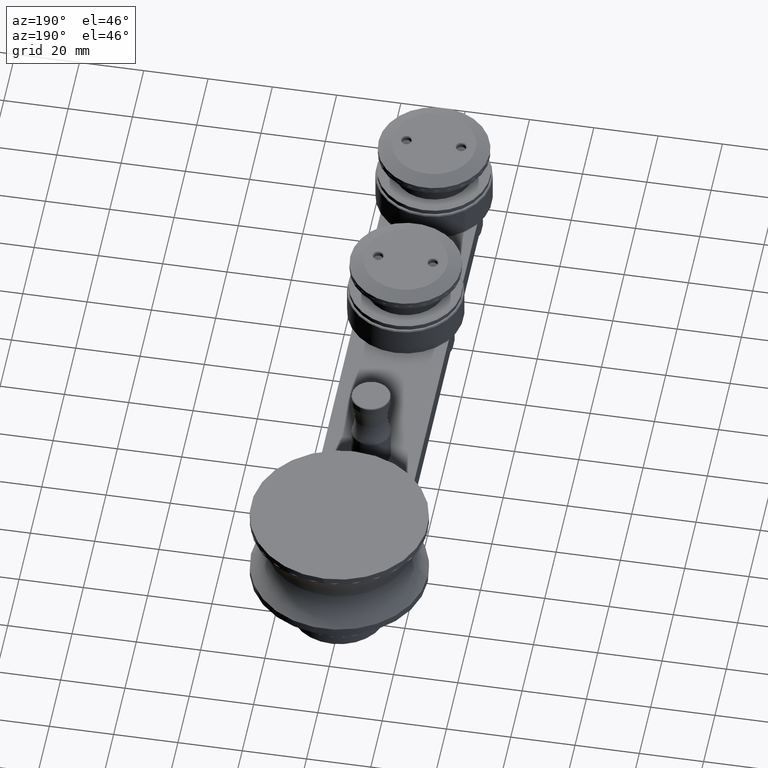
[diagram: clean part render]
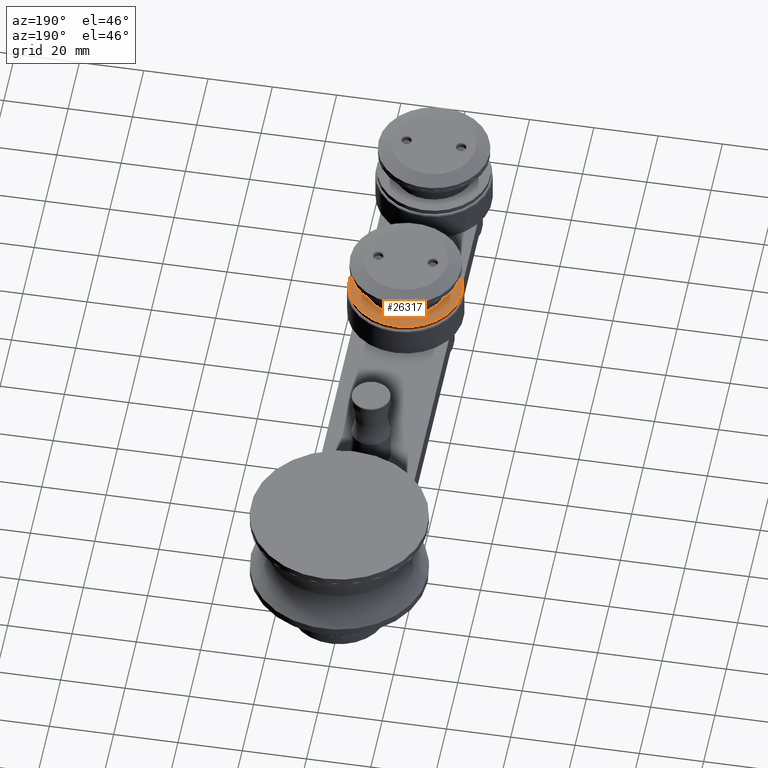
[diagram: same view with one face highlighted and labeled with its STEP entity id]
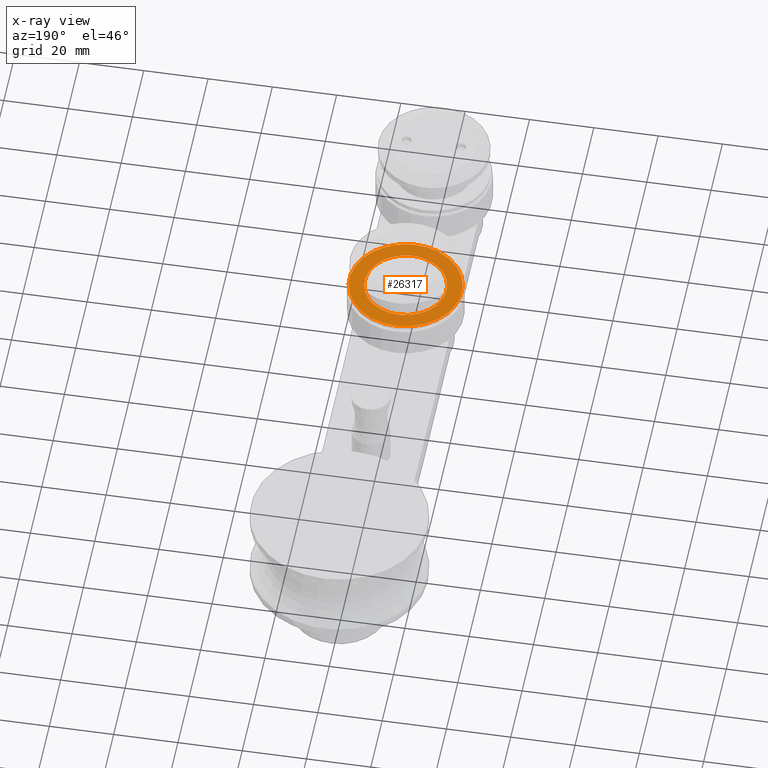
[diagram: x-ray of the same camera — body ghosted, the highlighted face saturated]
A machine part, auxiliary view. The second image highlights one B-rep face of the part: STEP entity #26317.
The next image is the same camera in x-ray: the body ghosted, the highlighted face saturated — about 0% of this face is hidden behind the body in this view.
In plain terms, the highlighted planar face has unit normal (0, 0, -1).
Its self-contained STEP definition (entity closure, byte-faithful):
#460 = EDGE_CURVE ( 'NONE', #39024, #37895, #22831, .T. ) ;
#1852 = DIRECTION ( 'NONE',  ( 0.0000000000000000000, 0.0000000000000000000, 1.000000000000000000 ) ) ;
#2511 = VERTEX_POINT ( 'NONE', #36245 ) ;
#3284 = EDGE_LOOP ( 'NONE', ( #18374, #18335 ) ) ;
#3932 = EDGE_CURVE ( 'NONE', #2511, #19309, #30898, .T. ) ;
#4702 = AXIS2_PLACEMENT_3D ( 'NONE', #45316, #27841, #41974 ) ;
#5527 = CARTESIAN_POINT ( 'NONE',  ( 17.50000000000000400, 2.143131898507868600E-015, 0.0000000000000000000 ) ) ;
#7519 = EDGE_CURVE ( 'NONE', #37895, #39024, #38958, .T. ) ;
#8960 = DIRECTION ( 'NONE',  ( 0.0000000000000000000, 0.0000000000000000000, 1.000000000000000000 ) ) ;
#10838 = DIRECTION ( 'NONE',  ( 0.0000000000000000000, 0.0000000000000000000, 1.000000000000000000 ) ) ;
#11509 = EDGE_LOOP ( 'NONE', ( #36810, #37788 ) ) ;
#15577 = CIRCLE ( 'NONE', #43969, 17.50000000000000400 ) ;
#16302 = CARTESIAN_POINT ( 'NONE',  ( 0.0000000000000000000, 0.0000000000000000000, 0.0000000000000000000 ) ) ;
#18014 = CARTESIAN_POINT ( 'NONE',  ( 0.0000000000000000000, 0.0000000000000000000, 0.0000000000000000000 ) ) ;
#18335 = ORIENTED_EDGE ( 'NONE', *, *, #37953, .F. ) ;
#18374 = ORIENTED_EDGE ( 'NONE', *, *, #3932, .F. ) ;
#19309 = VERTEX_POINT ( 'NONE', #5527 ) ;
#19311 = DIRECTION ( 'NONE',  ( 1.000000000000000000, 0.0000000000000000000, 0.0000000000000000000 ) ) ;
#19757 = CARTESIAN_POINT ( 'NONE',  ( 0.0000000000000000000, 0.0000000000000000000, 0.0000000000000000000 ) ) ;
#20341 = CARTESIAN_POINT ( 'NONE',  ( -12.69999999999999900, 0.0000000000000000000, 0.0000000000000000000 ) ) ;
#21564 = AXIS2_PLACEMENT_3D ( 'NONE', #41980, #38895, #34926 ) ;
#22831 = CIRCLE ( 'NONE', #37786, 12.69999999999999900 ) ;
#25012 = DIRECTION ( 'NONE',  ( 1.000000000000000000, 0.0000000000000000000, 0.0000000000000000000 ) ) ;
#26304 = AXIS2_PLACEMENT_3D ( 'NONE', #16302, #8960, #44266 ) ;
#26317 = ADVANCED_FACE ( 'NONE', ( #38391, #29033 ), #34921, .F. ) ;
#27841 = DIRECTION ( 'NONE',  ( 0.0000000000000000000, 0.0000000000000000000, 1.000000000000000000 ) ) ;
#29033 = FACE_BOUND ( 'NONE', #11509, .T. ) ;
#30898 = CIRCLE ( 'NONE', #21564, 17.50000000000000400 ) ;
#34921 = PLANE ( 'NONE',  #4702 ) ;
#34926 = DIRECTION ( 'NONE',  ( 1.000000000000000000, 0.0000000000000000000, 0.0000000000000000000 ) ) ;
#36245 = CARTESIAN_POINT ( 'NONE',  ( -17.50000000000000400, 0.0000000000000000000, 0.0000000000000000000 ) ) ;
#36810 = ORIENTED_EDGE ( 'NONE', *, *, #460, .T. ) ;
#37786 = AXIS2_PLACEMENT_3D ( 'NONE', #18014, #10838, #25012 ) ;
#37788 = ORIENTED_EDGE ( 'NONE', *, *, #7519, .T. ) ;
#37895 = VERTEX_POINT ( 'NONE', #39948 ) ;
#37953 = EDGE_CURVE ( 'NONE', #19309, #2511, #15577, .T. ) ;
#38391 = FACE_OUTER_BOUND ( 'NONE', #3284, .T. ) ;
#38895 = DIRECTION ( 'NONE',  ( 0.0000000000000000000, 0.0000000000000000000, 1.000000000000000000 ) ) ;
#38958 = CIRCLE ( 'NONE', #26304, 12.69999999999999900 ) ;
#39024 = VERTEX_POINT ( 'NONE', #20341 ) ;
#39948 = CARTESIAN_POINT ( 'NONE',  ( 12.69999999999999900, 1.555301434917138400E-015, 0.0000000000000000000 ) ) ;
#41974 = DIRECTION ( 'NONE',  ( 1.000000000000000000, 0.0000000000000000000, -0.0000000000000000000 ) ) ;
#41980 = CARTESIAN_POINT ( 'NONE',  ( 0.0000000000000000000, 0.0000000000000000000, 0.0000000000000000000 ) ) ;
#43969 = AXIS2_PLACEMENT_3D ( 'NONE', #19757, #1852, #19311 ) ;
#44266 = DIRECTION ( 'NONE',  ( 1.000000000000000000, 0.0000000000000000000, 0.0000000000000000000 ) ) ;
#45316 = CARTESIAN_POINT ( 'NONE',  ( 0.0000000000000000000, 0.0000000000000000000, 0.0000000000000000000 ) ) ;